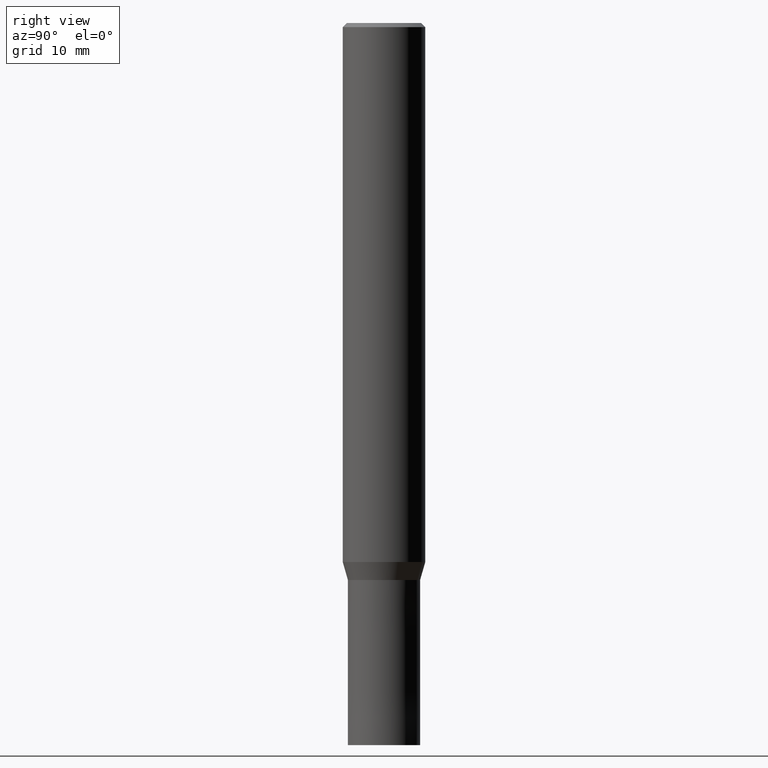
[diagram: clean part render]
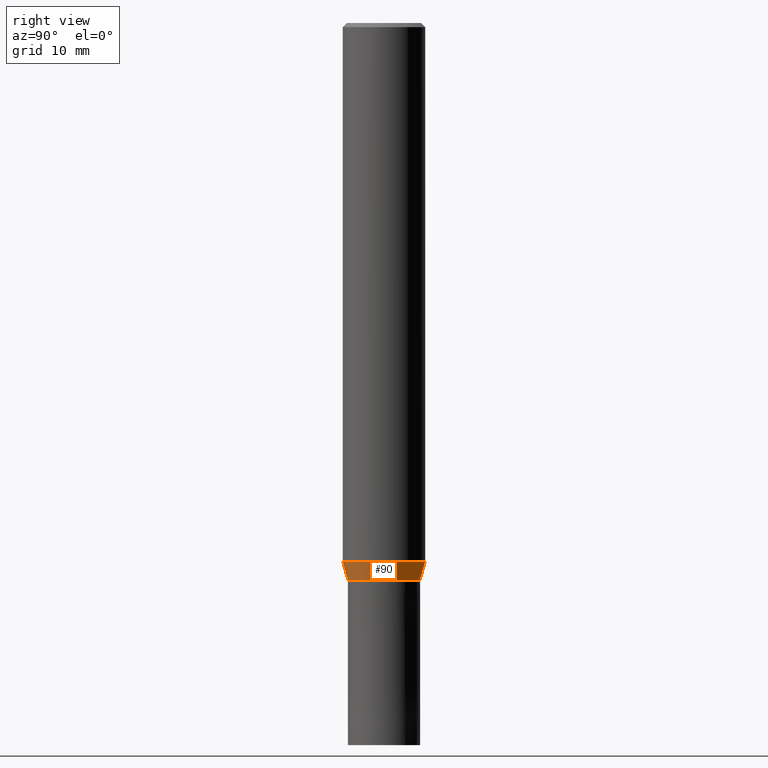
[diagram: same view with one face highlighted and labeled with its STEP entity id]
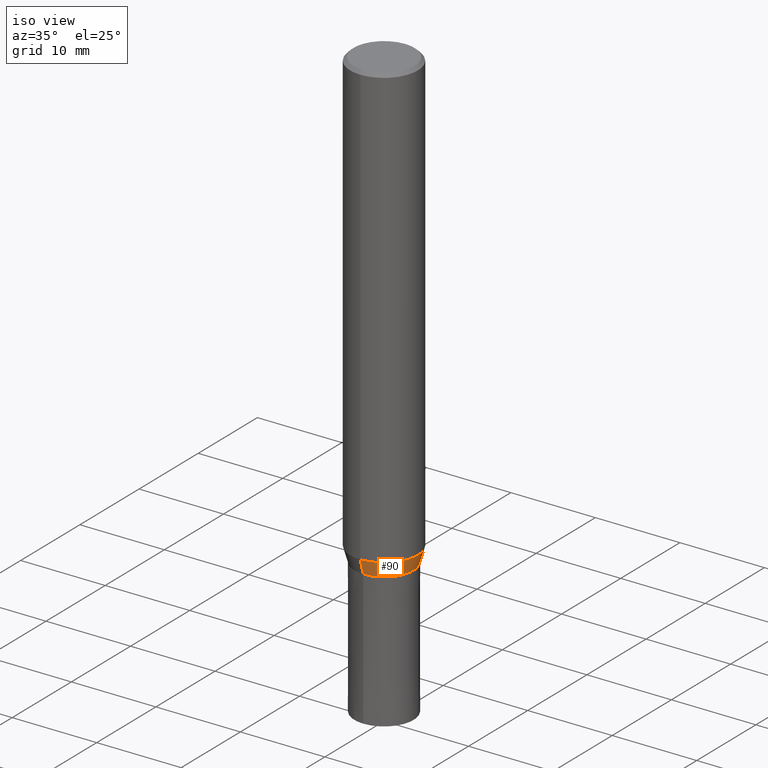
[diagram: same view with one face highlighted and labeled with its STEP entity id]
A machine part, right view. The second image highlights one B-rep face of the part: STEP entity #90.
A second angle (iso view) of the same face is appended — the face is thin or edge-on in the first view.
In plain terms, the highlighted conical surface has half-angle 15.997 deg.
Its self-contained STEP definition (entity closure, byte-faithful):
#84=VERTEX_POINT('',#205);
#86=EDGE_CURVE('',#140,#134,#207,.T.);
#90=ADVANCED_FACE('',(#211),#212,.T.);
#102=EDGE_CURVE('',#130,#84,#227,.T.);
#128=EDGE_CURVE('',#130,#140,#255,.T.);
#130=VERTEX_POINT('',#257);
#134=VERTEX_POINT('',#262);
#136=EDGE_CURVE('',#134,#84,#264,.T.);
#140=VERTEX_POINT('',#268);
#205=CARTESIAN_POINT('',(4.89836418497182E-016,-3.99995,-52.256));
#207=CIRCLE('',#335,3.49995);
#211=FACE_OUTER_BOUND('',#340,.T.);
#212=CONICAL_SURFACE('',#341,3.74995,0.279208199033747);
#227=CIRCLE('',#359,3.99995);
#255=LINE('',#399,#400);
#257=CARTESIAN_POINT('',(0.0,3.99995,-52.256));
#262=CARTESIAN_POINT('',(4.28606100806063E-016,-3.49995,-54.0));
#264=LINE('',#410,#411);
#268=CARTESIAN_POINT('',(0.0,3.49995,-54.0));
#335=AXIS2_PLACEMENT_3D('',#476,#477,#478);
#340=EDGE_LOOP('',(#483,#484,#485,#486));
#341=AXIS2_PLACEMENT_3D('',#487,#488,#489);
#359=AXIS2_PLACEMENT_3D('',#512,#513,#514);
#399=CARTESIAN_POINT('',(-4.59221259651622E-016,3.74995,-53.128));
#400=VECTOR('',#547,1.0);
#410=CARTESIAN_POINT('',(4.59221259651622E-016,-3.74995,-53.128));
#411=VECTOR('',#556,1.0);
#476=CARTESIAN_POINT('',(0.0,0.0,-54.0));
#477=DIRECTION('',(0.0,0.0,-1.0));
#478=DIRECTION('',(0.0,1.0,0.0));
#483=ORIENTED_EDGE('',*,*,#128,.F.);
#484=ORIENTED_EDGE('',*,*,#102,.T.);
#485=ORIENTED_EDGE('',*,*,#136,.F.);
#486=ORIENTED_EDGE('',*,*,#86,.F.);
#487=CARTESIAN_POINT('',(0.0,0.0,-53.128));
#488=DIRECTION('',(-0.0,-0.0,1.0));
#489=DIRECTION('',(0.0,1.0,0.0));
#512=CARTESIAN_POINT('',(0.0,0.0,-52.256));
#513=DIRECTION('',(0.0,0.0,-1.0));
#514=DIRECTION('',(0.0,1.0,0.0));
#547=DIRECTION('',(3.37494895041124E-017,-0.275594597388538,-0.961273955691222));
#556=DIRECTION('',(3.37494895041124E-017,-0.275594597388538,0.961273955691222));